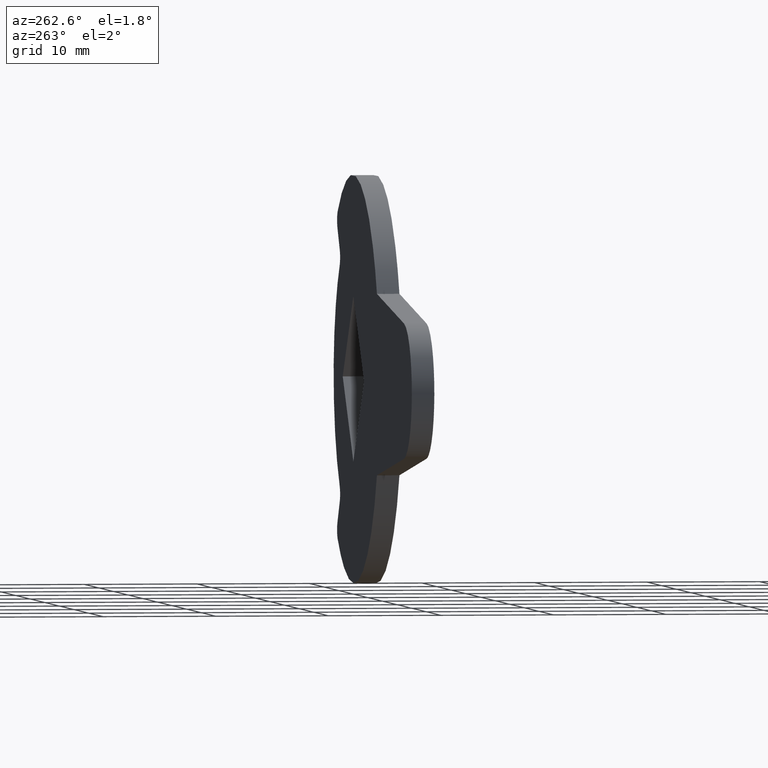
[diagram: clean part render]
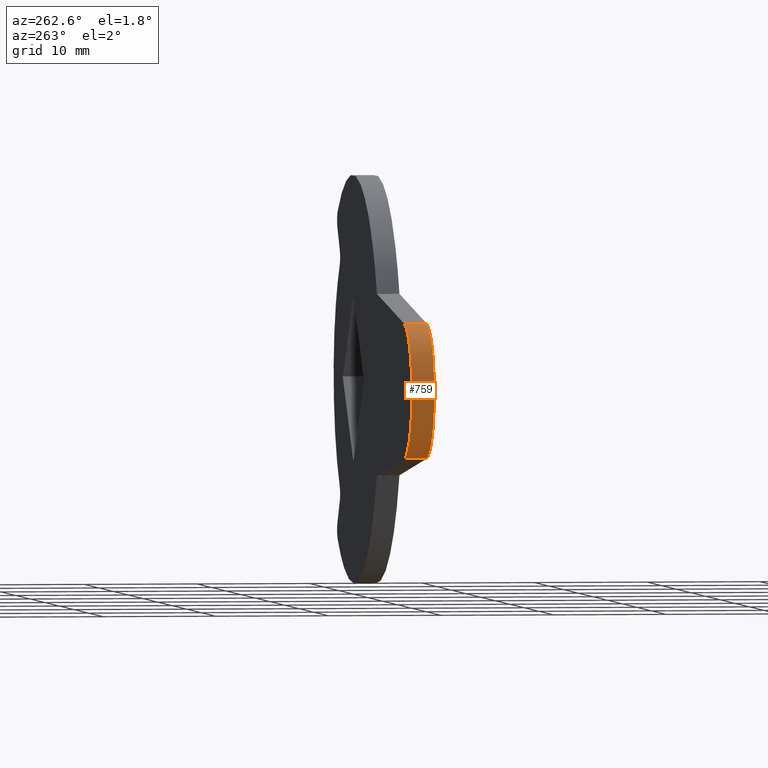
[diagram: same view with one face highlighted and labeled with its STEP entity id]
A machine part, auxiliary view. The second image highlights one B-rep face of the part: STEP entity #759.
In plain terms, the highlighted face is a freeform B-spline surface patch.
Its self-contained STEP definition (entity closure, byte-faithful):
#51=CARTESIAN_POINT('',(-34.676984152787249,0.0,-5.961662655938681));
#52=VERTEX_POINT('',#51);
#58=CARTESIAN_POINT('',(-34.633145301686049,0.0,5.966479173585730));
#59=VERTEX_POINT('',#58);
#60=CARTESIAN_POINT('',(-34.633145301686049,0.0,5.966479173585726));
#61=CARTESIAN_POINT('',(-39.979998210725512,0.0,5.398907567245670));
#62=CARTESIAN_POINT('',(-39.999759478119252,0.0,0.022051324836150));
#63=CARTESIAN_POINT('',(-40.019520745512963,0.0,-5.354804917573370));
#64=CARTESIAN_POINT('',(-34.676984152787249,0.0,-5.961662655938678));
#72=(BOUNDED_CURVE()B_SPLINE_CURVE(2,(#60,#61,#62,#63,#64),.UNSPECIFIED.,.F.,.U.)B_SPLINE_CURVE_WITH_KNOTS((3,2,3),(0.0,0.500000000000000,1.0),.UNSPECIFIED.)CURVE()GEOMETRIC_REPRESENTATION_ITEM()RATIONAL_B_SPLINE_CURVE((1.0,0.744718579548289,1.0,0.744718579548289,1.0))REPRESENTATION_ITEM(''));
#73=EDGE_CURVE('',#59,#52,#72,.T.);
#249=CARTESIAN_POINT('',(-34.676984152787249,-1.999999999999890,-5.961662655938681));
#250=VERTEX_POINT('',#249);
#385=CARTESIAN_POINT('',(-34.633145301686049,-1.999999999999890,5.966479173585730));
#386=VERTEX_POINT('',#385);
#392=CARTESIAN_POINT('',(-34.633145301686049,-1.999999999999890,5.966479173585726));
#393=CARTESIAN_POINT('',(-39.979998210725512,-1.999999999999891,5.398907567245670));
#394=CARTESIAN_POINT('',(-39.999759478119252,-1.999999999999890,0.022051324836150));
#395=CARTESIAN_POINT('',(-40.019520745512963,-1.999999999999891,-5.354804917573370));
#396=CARTESIAN_POINT('',(-34.676984152787249,-1.999999999999890,-5.961662655938678));
#404=(BOUNDED_CURVE()B_SPLINE_CURVE(2,(#392,#393,#394,#395,#396),.UNSPECIFIED.,.F.,.U.)B_SPLINE_CURVE_WITH_KNOTS((3,2,3),(0.0,0.500000000000000,1.0),.UNSPECIFIED.)CURVE()GEOMETRIC_REPRESENTATION_ITEM()RATIONAL_B_SPLINE_CURVE((1.0,0.744718579548289,1.0,0.744718579548289,1.0))REPRESENTATION_ITEM(''));
#405=EDGE_CURVE('',#386,#250,#404,.T.);
#721=CARTESIAN_POINT('',(-34.633145301686049,-1.999999999999890,5.966479173585730));
#722=CARTESIAN_POINT('',(-34.633145301686049,0.0,5.966479173585730));
#723=QUASI_UNIFORM_CURVE('',1,(#721,#722),.UNSPECIFIED.,.F.,.U.);
#724=EDGE_CURVE('',#386,#59,#723,.T.);
#731=CARTESIAN_POINT('',(-34.420382085359279,-2.049999999999888,5.985241073630603));
#732=CARTESIAN_POINT('',(-34.420382085359279,0.051249999999997,5.985241073630603));
#733=CARTESIAN_POINT('',(-40.100163787481257,-2.049999999999888,5.586123577229591));
#734=CARTESIAN_POINT('',(-40.100163787481257,0.051249999999997,5.586123577229591));
#735=CARTESIAN_POINT('',(-39.998850074369628,-2.049999999999888,-0.106762377295450));
#736=CARTESIAN_POINT('',(-39.998850074369628,0.051249999999997,-0.106762377295450));
#737=CARTESIAN_POINT('',(-39.897536361257991,-2.049999999999888,-5.799648331820496));
#738=CARTESIAN_POINT('',(-39.897536361257991,0.051249999999997,-5.799648331820496));
#739=CARTESIAN_POINT('',(-34.207149959023582,-2.049999999999888,-5.996416095843664));
#740=CARTESIAN_POINT('',(-34.207149959023582,0.051249999999997,-5.996416095843664));
#748=(BOUNDED_SURFACE()B_SPLINE_SURFACE(1,2,((#731,#733,#735,#737,#739),(#732,#734,#736,#738,#740)),.UNSPECIFIED.,.F.,.F.,.U.)B_SPLINE_SURFACE_WITH_KNOTS((2,2),(3,2,3),(0.0,2.101249999999885),(0.0,9.575029103369273,19.150058206738549),.UNSPECIFIED.)GEOMETRIC_REPRESENTATION_ITEM()RATIONAL_B_SPLINE_SURFACE(((1.0,0.725374371012288,1.0,0.725374371012288,1.0),(1.0,0.725374371012288,1.0,0.725374371012288,1.0)))REPRESENTATION_ITEM('')SURFACE());
#749=ORIENTED_EDGE('',*,*,#73,.T.);
#750=CARTESIAN_POINT('',(-34.676984152787249,-1.999999999999890,-5.961662655938681));
#751=CARTESIAN_POINT('',(-34.676984152787249,0.0,-5.961662655938681));
#752=QUASI_UNIFORM_CURVE('',1,(#750,#751),.UNSPECIFIED.,.F.,.U.);
#753=EDGE_CURVE('',#250,#52,#752,.T.);
#754=ORIENTED_EDGE('',*,*,#753,.F.);
#755=ORIENTED_EDGE('',*,*,#405,.F.);
#756=ORIENTED_EDGE('',*,*,#724,.T.);
#757=EDGE_LOOP('',(#749,#754,#755,#756));
#758=FACE_OUTER_BOUND('',#757,.T.);
#759=ADVANCED_FACE('',(#758),#748,.T.);